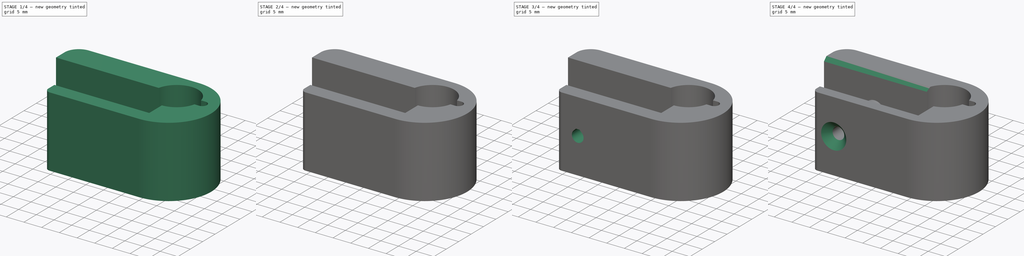
[diagram: build sequence overview — one tinted view per stage of 4, left to right]
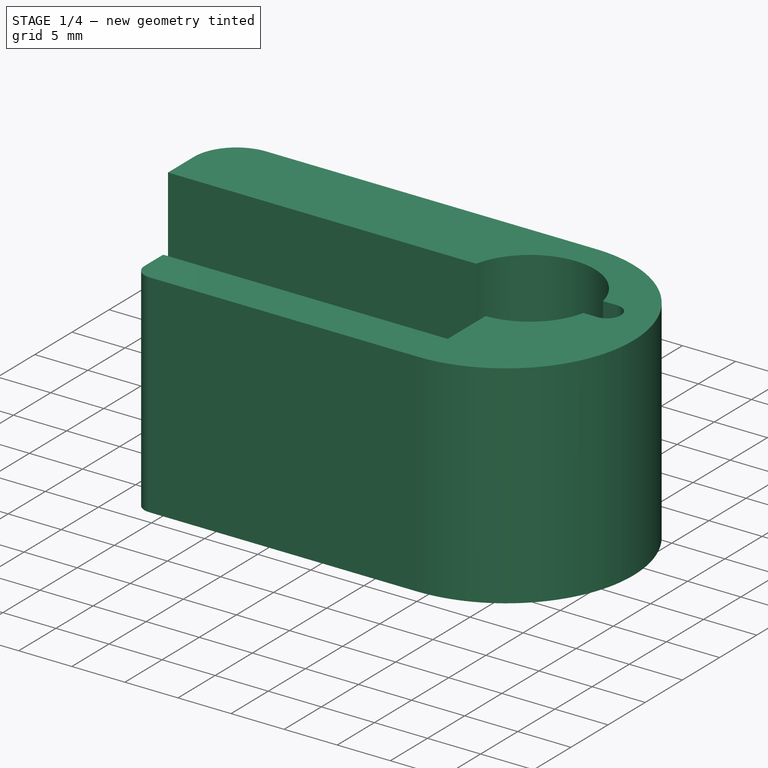
[diagram: stage 1 of 4 — iso view after this stage's code; geometry added in this stage tinted green]
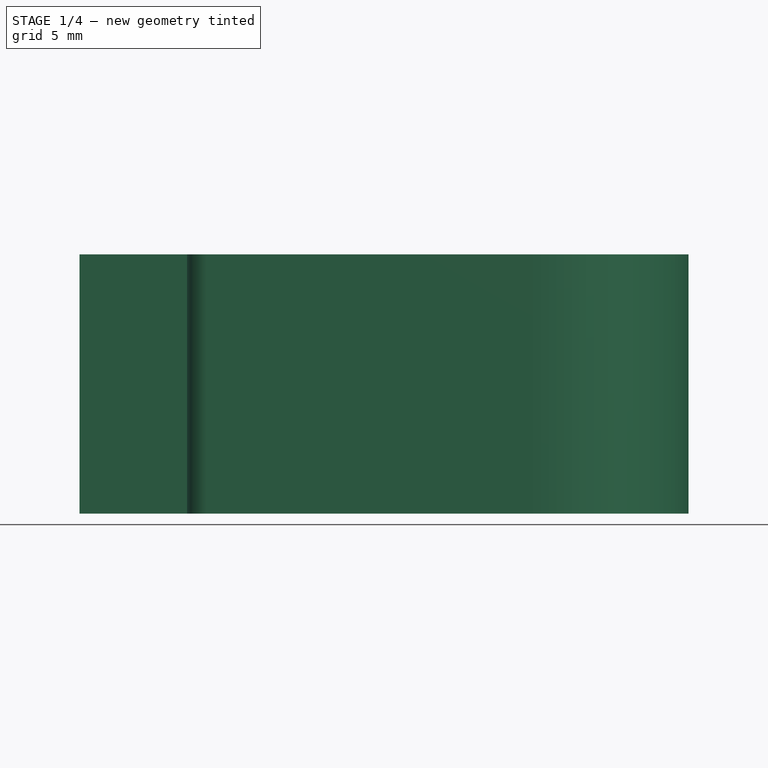
[diagram: stage 1 of 4 — front view after this stage's code; geometry added in this stage tinted green]
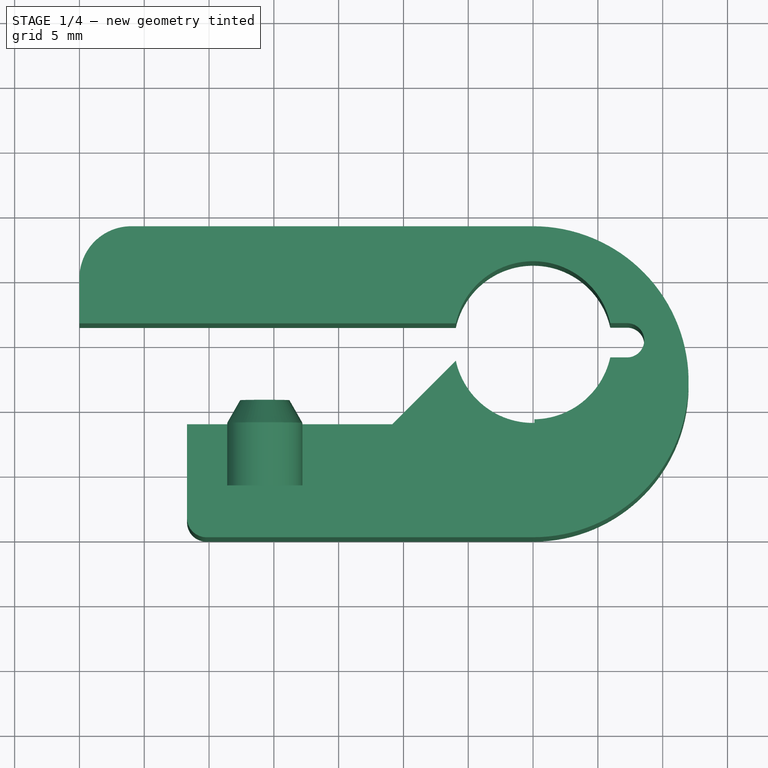
[diagram: stage 1 of 4 — top view after this stage's code; geometry added in this stage tinted green]
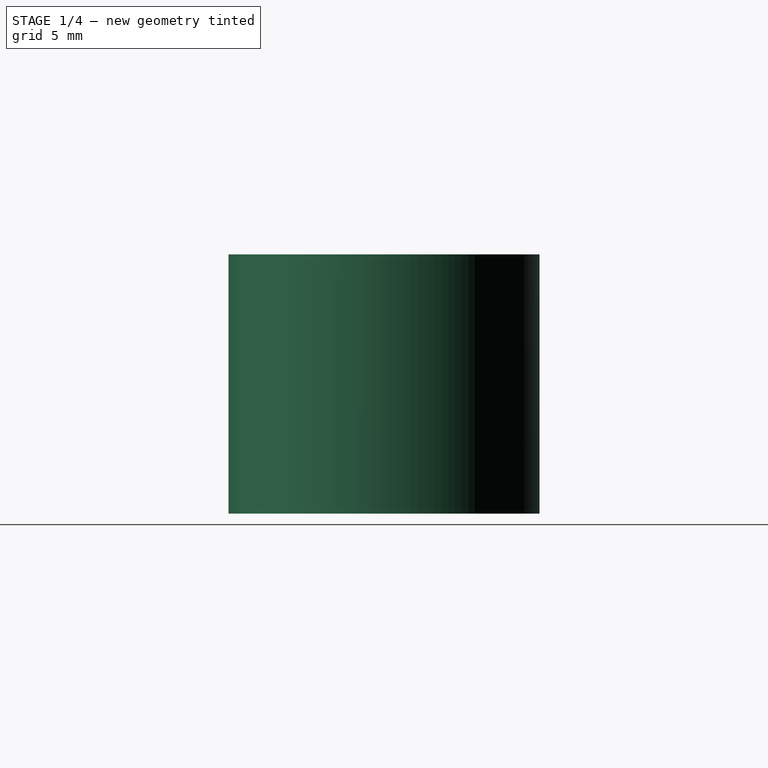
[diagram: stage 1 of 4 — right view after this stage's code; geometry added in this stage tinted green]
FCSTD DOCUMENT  (FreeCAD 0.17R13541 (Git))
Label: 10_462_x-idler-bracket
License: All rights reserved
LicenseURL: http://en.wikipedia.org/wiki/All_rights_reserved
objects: Sketcher::SketchObject×14, PartDesign::AdditiveLoft×4, PartDesign::Pocket×3, PartDesign::Chamfer×2, Spreadsheet::Sheet×1, PartDesign::Pad×1, PartDesign::SubtractiveLoft×1, PartDesign::Body×1
note: 35 computed .brp shape members not serialized (recipe doc carries the construction recipe); baked Part::Feature solids carry a one-line shape summary decoded from their .brp

FEATURE [Spreadsheet::Sheet] Spreadsheet  label="sheet1"
  cells = A1=max_x; B1(max_x)=47; A2=max_y; B2(max_y)=24; A3=max_z; B3(max_z)=20; A4=second_init_x; B4(second_init_x)=8.3000000000000007; A5=third_init_x; B5(third_init_x)=35; A6=second_init_y; B6(second_init_y)=16.5; A7=first_fini_y; B7(first_fini_y)=4; A8=first_fini_z; B8(first_fini_z)=4; A9=second_fini_y; B9(second_fini_y)=9; A10=start_x_bevel_to_rod; B10(start_x_bevel_to_rod)=24; A11=bevel_to_body_gap; B11(bevel_to_body_gap)=3; A12=stress_notch_y_gap; B12(stress_notch_y_gap)=2.6400000000000001; A13=rod_hole_x; B13(rod_hole_x)=15.199999999999999; A14=stress_notch_face_dx; B14(stress_notch_face_dx)=1.3; A15=rod_dia; B15(rod_dia)=12; A16=big_rad; B16(big_rad)=4; A17=small_rad; B17(small_rad)=1.5; A18=pinch_bolt_x; B18(pinch_bolt_x)=14.300000000000001; A19=pinch_bolt_boss_dx; B19(pinch_bolt_boss_dx)=5.7999999999999998; A20=pinch_bolt_z; B20(pinch_bolt_z)=10; A21=pinch_cone_top_dia; B21(pinch_cone_top_dia)=3.7999999999999998; A22=Pinch_cone_height; B22(Pinch_cone_height)=1.75; A23=belt_guide_base_rad1; B23(belt_guide_base_rad1)=4; A24=belt_guid_base_rad2; B24(belt_guid_base_rad2)=6.5; A25=belt_guide_base_dx; B25(belt_guide_base_dx)=6; A26=belt_guide_top_rad1; B26(belt_guide_top_rad1)=5; A27=belt_guide_top_rad2; B27(belt_guide_top_rad2)=5.5; A28=belt_guide_top_dx; B28(belt_guide_top_dx)=3.2000000000000002; A29=belt_guide_height; B29(belt_guide_height)=0.5; A30=m3_clearance; B30(m3_clearance)=3.2999999999999998; A31=m3_nut_trap; B31(m3_nut_trap)=5.5; A32=m3_nut_trap_depth; B32(m3_nut_trap_depth)=3
FEATURE [Sketcher::SketchObject] Sketch
  MapMode = 5
  Support = -> [XY_Plane]
  expr: Constraints[56] = sheet1.small_rad
  expr: Constraints[52] = sheet1.rod_dia / 2 + 0.10000000000000001
  expr: Constraints[44] = sheet1.max_y
  expr: Constraints[5] = sheet1.max_x
  expr: Constraints[57] = sheet1.second_init_y
  expr: Constraints[33] = sheet1.stress_notch_y_gap
  expr: Constraints[58] = sheet1.big_rad
  expr: Constraints[34] = sheet1.second_fini_y
  expr: Constraints[53] = sheet1.rod_hole_x
  expr: Constraints[54] = sheet1.stress_notch_face_dx
  expr: Constraints[55] = sheet1.second_init_x
  sketch-geometry (22):
    g0: LineSegment [constr] StartX=0 StartY=24 StartZ=0 EndX=47 EndY=24 EndZ=0
    g1: LineSegment [constr] StartX=47 StartY=24 StartZ=0 EndX=47 EndY=5e-12 EndZ=0
    g2: LineSegment [constr] StartX=47 StartY=5e-12 StartZ=0 EndX=0 EndY=0 EndZ=0
    g3: LineSegment [constr] StartX=0 StartY=0 StartZ=0 EndX=0 EndY=24 EndZ=0
    g4: ArcOfCircle CenterX=35 CenterY=12 CenterZ=0 NormalX=0 NormalY=0 NormalZ=1 AngleXU=0 Radius=12 StartAngle=4.71239 EndAngle=7.85398
    g5: ArcOfCircle CenterX=4 CenterY=20 CenterZ=0 NormalX=0 NormalY=0 NormalZ=1 AngleXU=0 Radius=4 StartAngle=1.5708 EndAngle=3.14159
    g6: LineSegment [constr] StartX=35 StartY=24 StartZ=0 EndX=35 EndY=4e-12 EndZ=0
    g7: LineSegment StartX=40.9555 StartY=16.52 StartZ=0 EndX=42.2555 EndY=16.52 EndZ=0
    g8: LineSegment StartX=40.9555 StartY=13.88 StartZ=0 EndX=42.2555 EndY=13.88 EndZ=0
    g9: ArcOfCircle CenterX=42.2555 CenterY=15.2 CenterZ=0 NormalX=0 NormalY=0 NormalZ=1 AngleXU=0 Radius=1.32 StartAngle=4.71239 EndAngle=7.85398
    g10: LineSegment [constr] StartX=35 StartY=15.2 StartZ=0 EndX=42.2555 EndY=15.2 EndZ=0
    g11: LineSegment [constr] StartX=29.0401 StartY=16.5 StartZ=0 EndX=29.0401 EndY=13.9 EndZ=0
    g12: LineSegment StartX=35 StartY=24 StartZ=0 EndX=4 EndY=24 EndZ=0
    g13: LineSegment StartX=0 StartY=20 StartZ=0 EndX=0 EndY=16.5 EndZ=0
    g14: LineSegment StartX=0 StartY=16.5 StartZ=0 EndX=29.0401 EndY=16.5 EndZ=0
    g15: ArcOfCircle CenterX=9.8 CenterY=1.5 CenterZ=0 NormalX=0 NormalY=0 NormalZ=1 AngleXU=0 Radius=1.5 StartAngle=3.14159 EndAngle=4.71239
    g16: LineSegment StartX=35 StartY=4e-12 StartZ=0 EndX=9.8 EndY=1e-12 EndZ=0
    g17: LineSegment StartX=8.3 StartY=1.5 StartZ=0 EndX=8.3 EndY=9 EndZ=0
    g18: LineSegment StartX=8.3 StartY=9 StartZ=0 EndX=24.1401 EndY=9 EndZ=0
    g19: LineSegment StartX=24.1401 StartY=9 StartZ=0 EndX=29.0401 EndY=13.9 EndZ=0
    g20: ArcOfCircle CenterX=35 CenterY=15.2 CenterZ=0 NormalX=0 NormalY=0 NormalZ=1 AngleXU=0 Radius=6.1 StartAngle=3.35635 EndAngle=6.06507
    g21: ArcOfCircle CenterX=35 CenterY=15.2 CenterZ=0 NormalX=0 NormalY=0 NormalZ=1 AngleXU=0 Radius=6.1 StartAngle=0.218119 EndAngle=2.92683
  constraints (59):
    c: Coincident(g0,g1)
    c: Coincident(g1,g2)
    c: Vertical(g1)
    c: Vertical(g3)
    c: Coincident(g-1,g2)
    c: Distance(g2) = 47
    c: Tangent(g4,g1)
    c: Tangent(g5,g0) = 1.5708
    c: Tangent(g5,g3) = 1.5708
    c: Coincident(g6,g4)
    c: Coincident(g6,g4)
    c: Horizontal(g8)
    c: Horizontal(g7)
    c: Tangent(g9,g7) = 1.5708
    c: Tangent(g9,g8) = -1.5708
    c: Coincident(g10,g9)
    c: Horizontal(g10)
    c: Vertical(g11)
    c: Coincident(g13,g14)
    c: Coincident(g13,g5)
    c: Coincident(g12,g5)
    c: Coincident(g12,g4)
    c: PointOnObject(g13,g3)
    c: Horizontal(g14)
    c: Tangent(g15,g2) = 1.5708
    c: Coincident(g16,g15)
    c: Coincident(g16,g4)
    c: Coincident(g17,g18)
    c: Coincident(g18,g19)
    c: Tangent(g17,g15) = 1.5708
    c: Vertical(g17)
    c: Horizontal(g18)
    c: Angle(g19,g18) = 2.35619
    c: Distance(g8,g7) = 2.64
    c: Distance(g17,g16) = 9
    c: Coincident(g20,g8)
    c: Coincident(g20,g19)
    c: Coincident(g11,g19)
    c: Coincident(g14,g11)
    c: Coincident(g20,g21)
    c: PointOnObject(g4,g6)
    c: Vertical(g6)
    c: Tangent(g4,g0) = 1.5708
    c: Tangent(g4,g2) = 1.5708
    c: Distance(g3) = 24
    c: Coincident(g0,g3)
    c: Coincident(g2,g3)
    c: Coincident(g21,g14)
    c: Coincident(g7,g21)
    c: Coincident(g20,g10)
    c: PointOnObject(g20,g6)
    c: Equal(g21,g20)
    c: Radius(g21) = 6.1
    c: Distance(g20,g2) = 15.2
    c: Distance(g7,g7) = 1.3
    c: Distance(g15,g3) = 8.3
    c: Radius(g15) = 1.5
    c: Distance(g13,g2) = 16.5
    c: Radius(g5) = 4
FEATURE [PartDesign::Pad] Pad
  Length = 20
  Length2 = 100
  Profile = -> Sketch
  Type = 0
  expr: Length = sheet1.max_z
FEATURE [Sketcher::SketchObject] Sketch001
  AttachmentOffset = pos=(0,0,-4) rot=(0,0,1;0rad)
  MapMode = 5
  Placement = pos=(0,4,0) rot=(1,0,0;1.5708rad)
  Support = -> [XZ_Plane]
  expr: Constraints[22] = sheet1.pinch_bolt_z
  expr: Constraints[17] = sheet1.first_fini_z
  expr: Constraints[20] = sheet1.pinch_bolt_boss_dx
  expr: Constraints[21] = sheet1.pinch_bolt_x
  expr: Constraints[18] = sheet1.max_z
  expr: AttachmentOffset.Base.z = -sheet1.first_fini_y
  sketch-geometry (8):
    g0: LineSegment StartX=17.2 StartY=10 StartZ=0 EndX=17.2 EndY=4 EndZ=0
    g1: LineSegment StartX=17.2 StartY=4 StartZ=0 EndX=35.1 EndY=4 EndZ=0
    g2: LineSegment StartX=35.1 StartY=4 StartZ=0 EndX=35.1 EndY=20 EndZ=0
    g3: LineSegment StartX=35.1 StartY=20 StartZ=0 EndX=0 EndY=20 EndZ=0
    g4: LineSegment StartX=0 StartY=20 StartZ=0 EndX=0 EndY=4 EndZ=0
    g5: LineSegment StartX=0 StartY=4 StartZ=0 EndX=11.4 EndY=4 EndZ=0
    g6: LineSegment StartX=11.4 StartY=4 StartZ=0 EndX=11.4 EndY=10 EndZ=0
    g7: ArcOfCircle CenterX=14.3 CenterY=10 CenterZ=0 NormalX=0 NormalY=0 NormalZ=1 AngleXU=0 Radius=2.9 StartAngle=0 EndAngle=3.14159
  constraints (23):
    c: Coincident(g0,g1)
    c: Coincident(g1,g2)
    c: Coincident(g2,g3)
    c: Coincident(g3,g4)
    c: Coincident(g4,g5)
    c: Coincident(g5,g6)
    c: Vertical(g4)
    c: Vertical(g6)
    c: Vertical(g0)
    c: Vertical(g2)
    c: Horizontal(g5)
    c: Horizontal(g1)
    c: Horizontal(g3)
    c: PointOnObject(g4,g-2)
    c: PointOnObject(g0,g5)
    c: Tangent(g6,g7) = 1.5708
    c: Tangent(g0,g7) = 1.5708
    c: DistanceY(g-1,g4) = 4
    c: DistanceY(g-1,g3) = 20
    c: DistanceX(g-2,g1) = 35.1
    c: Distance(g5,g0) = 5.8
    c: DistanceX(g-2,g7) = 14.3
    c: DistanceY(g-1,g7) = 10
FEATURE [PartDesign::Pocket] Pocket
  BaseFeature = -> Pad
  Length = 12
  Length2 = 100
  Profile = -> Sketch001
  Type = 0
  expr: Length = sheet1.second_init_y - sheet1.first_fini_y - 0.5
FEATURE [Sketcher::SketchObject] Sketch002
  AttachmentOffset = pos=(0,0,-9) rot=(0,0,1;0rad)
  MapMode = 5
  Placement = pos=(0,9,1e-12) rot=(1,0,0;1.5708rad)
  Support = -> [XZ_Plane]
  expr: AttachmentOffset.Base.z = -sheet1.second_fini_y
  expr: Constraints[1] = sheet1.pinch_bolt_x
  expr: Constraints[2] = sheet1.pinch_bolt_z
  expr: Constraints[0] = sheet1.pinch_bolt_boss_dx / 2
  sketch-geometry (1):
    g0: Circle CenterX=14.3 CenterY=10 CenterZ=0 NormalX=0 NormalY=0 NormalZ=1 AngleXU=0 Radius=2.9
  constraints (3):
    c: Radius(g0) = 2.9
    c: DistanceX(g-2,g0) = 14.3
    c: DistanceY(g-1,g0) = 10
FEATURE [Sketcher::SketchObject] Sketch003
  AttachmentOffset = pos=(0,0,-10.75) rot=(0,0,1;0rad)
  MapMode = 5
  Placement = pos=(0,10.75,1e-12) rot=(1,0,0;1.5708rad)
  Support = -> [XZ_Plane]
  expr: AttachmentOffset.Base.z = -sheet1.second_fini_y - sheet1.Pinch_cone_height
  expr: Constraints[1] = sheet1.pinch_bolt_x
  expr: Constraints[2] = sheet1.pinch_bolt_z
  expr: Constraints[0] = sheet1.pinch_cone_top_dia / 2
  sketch-geometry (1):
    g0: Circle CenterX=14.3 CenterY=10 CenterZ=0 NormalX=0 NormalY=0 NormalZ=1 AngleXU=0 Radius=1.9
  constraints (3):
    c: Radius(g0) = 1.9
    c: DistanceX(g-2,g0) = 14.3
    c: DistanceY(g-1,g0) = 10
FEATURE [PartDesign::AdditiveLoft] AdditiveLoft
  BaseFeature = -> Pocket
  Closed = false
  Profile = -> Sketch002
  Ruled = false
  Sections = -> [Sketch003]
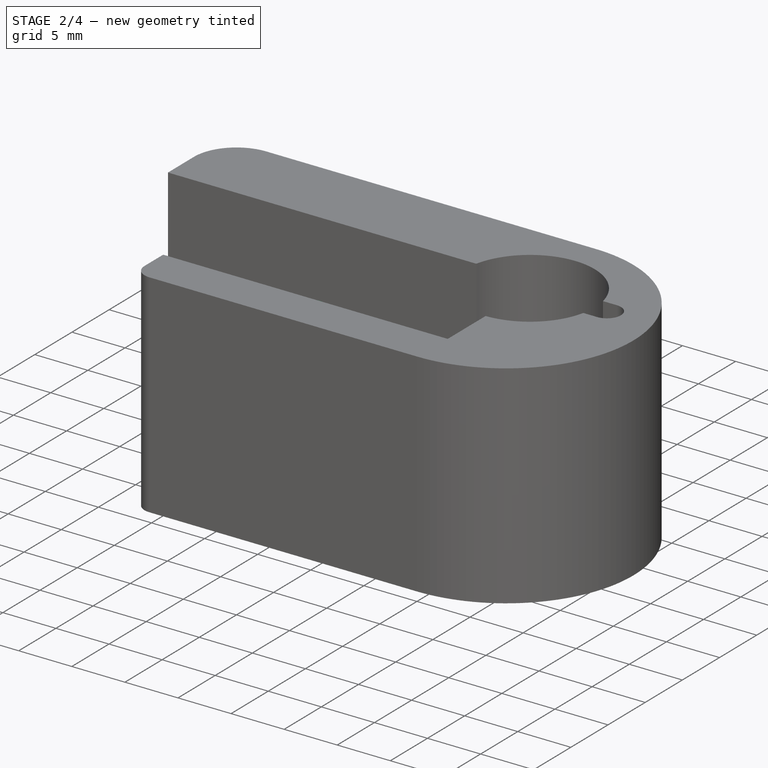
[diagram: stage 2 of 4 — iso view after this stage's code; geometry added in this stage tinted green]
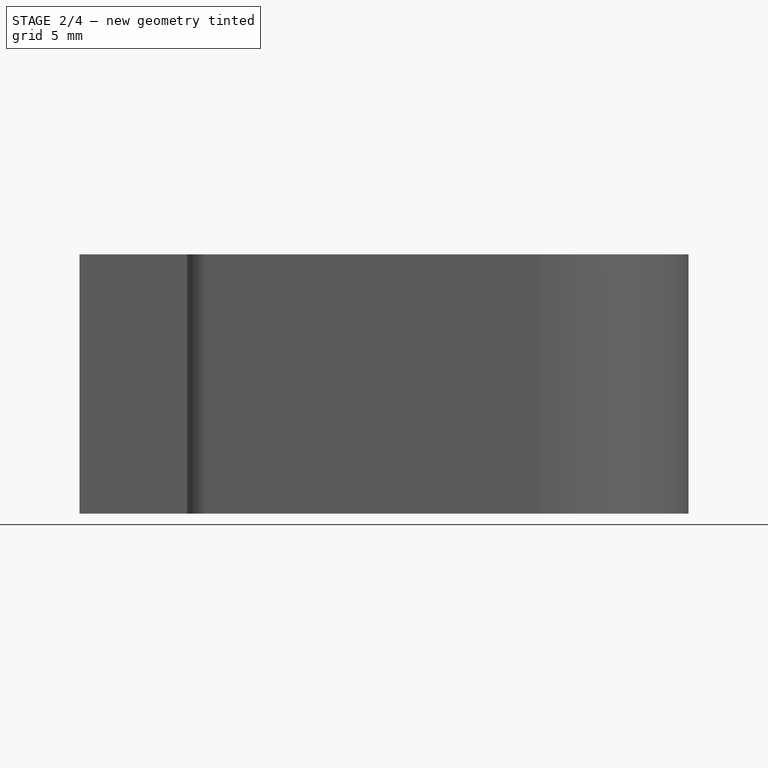
[diagram: stage 2 of 4 — front view after this stage's code; geometry added in this stage tinted green]
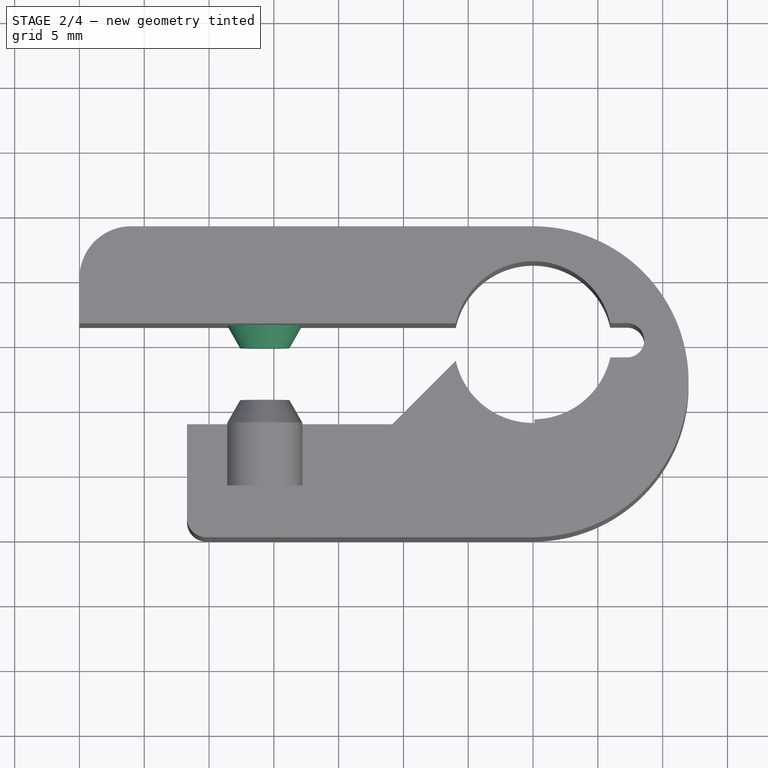
[diagram: stage 2 of 4 — top view after this stage's code; geometry added in this stage tinted green]
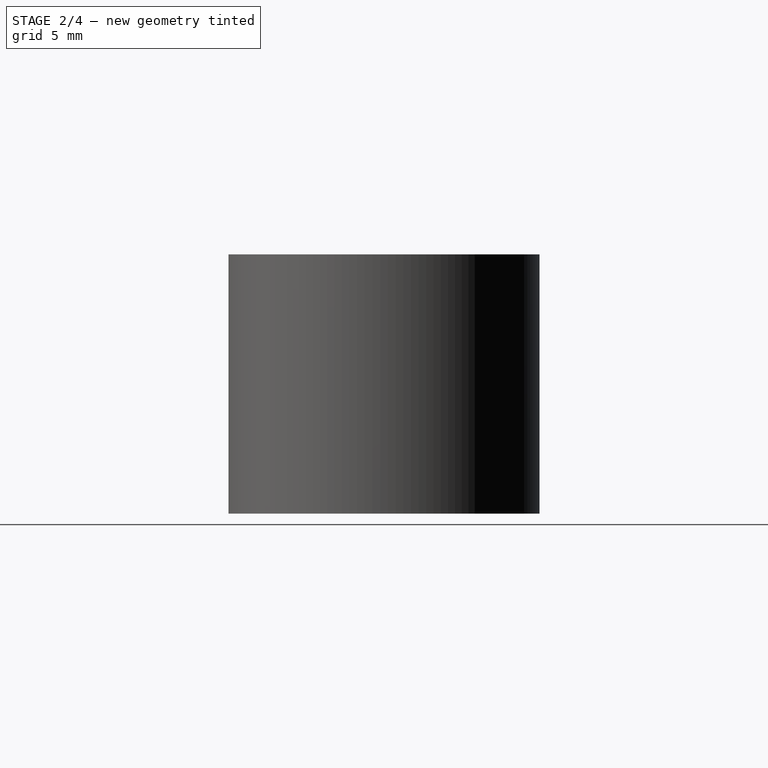
[diagram: stage 2 of 4 — right view after this stage's code; geometry added in this stage tinted green]
FEATURE [Sketcher::SketchObject] Sketch004
  AttachmentOffset = pos=(0,0,-16.5) rot=(0,0,1;0rad)
  MapMode = 5
  Placement = pos=(0,16.5,2e-12) rot=(1,0,0;1.5708rad)
  Support = -> [XZ_Plane]
  expr: AttachmentOffset.Base.z = -sheet1.second_init_y
  expr: Constraints[1] = sheet1.pinch_bolt_x
  expr: Constraints[2] = sheet1.pinch_bolt_z
  expr: Constraints[0] = sheet1.pinch_bolt_boss_dx / 2
  sketch-geometry (1):
    g0: Circle CenterX=14.3 CenterY=10 CenterZ=0 NormalX=0 NormalY=0 NormalZ=1 AngleXU=0 Radius=2.9
  constraints (3):
    c: Radius(g0) = 2.9
    c: DistanceX(g-2,g0) = 14.3
    c: DistanceY(g-1,g0) = 10
FEATURE [Sketcher::SketchObject] Sketch005
  AttachmentOffset = pos=(0,0,-14.75) rot=(0,0,1;0rad)
  MapMode = 5
  Placement = pos=(0,14.75,2e-12) rot=(1,0,0;1.5708rad)
  Support = -> [XZ_Plane]
  expr: AttachmentOffset.Base.z = -sheet1.second_init_y + sheet1.Pinch_cone_height
  expr: Constraints[1] = sheet1.pinch_bolt_x
  expr: Constraints[2] = sheet1.pinch_bolt_z
  expr: Constraints[0] = sheet1.pinch_cone_top_dia / 2
  sketch-geometry (1):
    g0: Circle CenterX=14.3 CenterY=10 CenterZ=0 NormalX=0 NormalY=0 NormalZ=1 AngleXU=0 Radius=1.9
  constraints (3):
    c: Radius(g0) = 1.9
    c: DistanceX(g-2,g0) = 14.3
    c: DistanceY(g-1,g0) = 10
FEATURE [PartDesign::AdditiveLoft] AdditiveLoft001
  BaseFeature = -> AdditiveLoft
  Closed = false
  Profile = -> Sketch004
  Ruled = false
  Sections = -> [Sketch005]
FEATURE [Sketcher::SketchObject] Sketch006
  AttachmentOffset = pos=(0,0,-9) rot=(0,0,1;0rad)
  MapMode = 5
  Placement = pos=(0,9,1e-12) rot=(1,0,0;1.5708rad)
  Support = -> [XZ_Plane]
  expr: AttachmentOffset.Base.z = -sheet1.second_fini_y
  expr: Constraints[6] = sheet1.belt_guide_base_rad1
  expr: Constraints[2] = sheet1.pinch_bolt_x
  expr: Constraints[5] = sheet1.pinch_bolt_boss_dx
  expr: Constraints[3] = sheet1.pinch_bolt_z
  expr: Constraints[1] = sheet1.max_z
  expr: Constraints[7] = sheet1.belt_guid_base_rad2
  sketch-geometry (7):
    g0: LineSegment [constr] StartX=14.3 StartY=0 StartZ=0 EndX=14.3 EndY=20 EndZ=0
    g1: LineSegment [constr] StartX=11.4 StartY=6 StartZ=0 EndX=17.2 EndY=6 EndZ=0
    g2: LineSegment [constr] StartX=11.4 StartY=3.5 StartZ=0 EndX=17.2 EndY=3.5 EndZ=0
    g3: ArcOfCircle CenterX=14.3 CenterY=10 CenterZ=0 NormalX=0 NormalY=0 NormalZ=1 AngleXU=0 Radius=4.94065 StartAngle=4.08508 EndAngle=5.3397
    g4: ArcOfCircle CenterX=14.3 CenterY=10 CenterZ=0 NormalX=0 NormalY=0 NormalZ=1 AngleXU=0 Radius=7.11758 StartAngle=4.29274 EndAngle=5.13204
    g5: LineSegment StartX=11.4 StartY=6 StartZ=0 EndX=11.4 EndY=3.5 EndZ=0
    g6: LineSegment StartX=17.2 StartY=6 StartZ=0 EndX=17.2 EndY=3.5 EndZ=0
  constraints (20):
    c: PointOnObject(g0,g-1)
    c: Distance(g0) = 20
    c: DistanceX(g-2,g0) = 14.3
    c: DistanceY(g-1,g3) = 10
    c: Equal(g1,g2)
    c: Distance(g1) = 5.8
    c: Distance(g3,g1) = 4
    c: Distance(g3,g2) = 6.5
    c: Coincident(g5,g3)
    c: Coincident(g3,g1)
    c: Symmetric(g3,g6,g0)
    c: Coincident(g6,g1)
    c: Coincident(g4,g5)
    c: Symmetric(g2,g2,g0)
    c: Coincident(g6,g4)
    c: Coincident(g4,g2)
    c: Coincident(g4,g2)
    c: Coincident(g3,g6)
    c: Coincident(g4,g3)
    c: Horizontal(g1)
FEATURE [Sketcher::SketchObject] Sketch007
  AttachmentOffset = pos=(0,0,-9.5) rot=(0,0,1;0rad)
  MapMode = 5
  Placement = pos=(0,9.5,1e-12) rot=(1,0,0;1.5708rad)
  Support = -> [XZ_Plane]
  expr: AttachmentOffset.Base.z = -sheet1.second_fini_y - sheet1.belt_guide_height
  expr: Constraints[6] = sheet1.belt_guide_top_rad1
  expr: Constraints[2] = sheet1.pinch_bolt_x
  expr: Constraints[5] = sheet1.belt_guide_top_dx
  expr: Constraints[3] = sheet1.pinch_bolt_z
  expr: Constraints[1] = sheet1.max_z
  expr: Constraints[7] = sheet1.belt_guide_top_rad2
  sketch-geometry (7):
    g0: LineSegment [constr] StartX=14.3 StartY=0 StartZ=0 EndX=14.3 EndY=20 EndZ=0
    g1: LineSegment [constr] StartX=12.7 StartY=5 StartZ=0 EndX=15.9 EndY=5 EndZ=0
    g2: LineSegment [constr] StartX=12.7 StartY=4.5 StartZ=0 EndX=15.9 EndY=4.5 EndZ=0
    g3: ArcOfCircle CenterX=14.3 CenterY=10 CenterZ=0 NormalX=0 NormalY=0 NormalZ=1 AngleXU=0 Radius=5.24976 StartAngle=4.40269 EndAngle=5.02209
    g4: ArcOfCircle CenterX=14.3 CenterY=10 CenterZ=0 NormalX=0 NormalY=0 NormalZ=1 AngleXU=0 Radius=5.728 StartAngle=4.42929 EndAngle=4.99548
    g5: LineSegment StartX=12.7 StartY=5 StartZ=0 EndX=12.7 EndY=4.5 EndZ=0
    g6: LineSegment StartX=15.9 StartY=5 StartZ=0 EndX=15.9 EndY=4.5 EndZ=0
  constraints (20):
    c: PointOnObject(g0,g-1)
    c: Distance(g0) = 20
    c: DistanceX(g-2,g0) = 14.3
    c: DistanceY(g-1,g3) = 10
    c: Equal(g1,g2)
    c: Distance(g1) = 3.2
    c: Distance(g3,g1) = 5
    c: Distance(g3,g2) = 5.5
    c: Coincident(g5,g3)
    c: Coincident(g3,g1)
    c: Symmetric(g3,g6,g0)
    c: Coincident(g6,g1)
    c: Coincident(g4,g5)
    c: Symmetric(g2,g2,g0)
    c: Coincident(g6,g4)
    c: Coincident(g4,g2)
    c: Coincident(g4,g2)
    c: Coincident(g3,g6)
    c: Coincident(g4,g3)
    c: Horizontal(g1)
FEATURE [PartDesign::AdditiveLoft] AdditiveLoft002
  BaseFeature = -> AdditiveLoft001
  Closed = false
  Profile = -> Sketch006
  Ruled = false
  Sections = -> [Sketch007]
FEATURE [Sketcher::SketchObject] Sketch008
  AttachmentOffset = pos=(0,0,-16.5) rot=(0,0,1;0rad)
  MapMode = 5
  Placement = pos=(0,16.5,2e-12) rot=(1,0,0;1.5708rad)
  Support = -> [XZ_Plane]
  expr: AttachmentOffset.Base.z = -sheet1.second_init_y
  expr: Constraints[6] = sheet1.belt_guide_base_rad1
  expr: Constraints[2] = sheet1.pinch_bolt_x
  expr: Constraints[5] = sheet1.pinch_bolt_boss_dx
  expr: Constraints[3] = sheet1.pinch_bolt_z
  expr: Constraints[1] = sheet1.max_z
  expr: Constraints[7] = sheet1.belt_guid_base_rad2
  sketch-geometry (7):
    g0: LineSegment [constr] StartX=14.3 StartY=0 StartZ=0 EndX=14.3 EndY=20 EndZ=0
    g1: LineSegment [constr] StartX=11.4 StartY=6 StartZ=0 EndX=17.2 EndY=6 EndZ=0
    g2: LineSegment [constr] StartX=11.4 StartY=3.5 StartZ=0 EndX=17.2 EndY=3.5 EndZ=0
    g3: ArcOfCircle CenterX=14.3 CenterY=10 CenterZ=0 NormalX=0 NormalY=0 NormalZ=1 AngleXU=0 Radius=4.94065 StartAngle=4.08508 EndAngle=5.3397
    g4: ArcOfCircle CenterX=14.3 CenterY=10 CenterZ=0 NormalX=0 NormalY=0 NormalZ=1 AngleXU=0 Radius=7.11758 StartAngle=4.29274 EndAngle=5.13204
    g5: LineSegment StartX=11.4 StartY=6 StartZ=0 EndX=11.4 EndY=3.5 EndZ=0
    g6: LineSegment StartX=17.2 StartY=6 StartZ=0 EndX=17.2 EndY=3.5 EndZ=0
  constraints (20):
    c: PointOnObject(g0,g-1)
    c: Distance(g0) = 20
    c: DistanceX(g-2,g0) = 14.3
    c: DistanceY(g-1,g3) = 10
    c: Equal(g1,g2)
    c: Distance(g1) = 5.8
    c: Distance(g3,g1) = 4
    c: Distance(g3,g2) = 6.5
    c: Coincident(g5,g3)
    c: Coincident(g3,g1)
    c: Symmetric(g3,g6,g0)
    c: Coincident(g6,g1)
    c: Coincident(g4,g5)
    c: Symmetric(g2,g2,g0)
    c: Coincident(g6,g4)
    c: Coincident(g4,g2)
    c: Coincident(g4,g2)
    c: Coincident(g3,g6)
    c: Coincident(g4,g3)
    c: Horizontal(g1)
FEATURE [Sketcher::SketchObject] Sketch009
  AttachmentOffset = pos=(0,0,-16) rot=(0,0,1;0rad)
  MapMode = 5
  Placement = pos=(0,16,2e-12) rot=(1,0,0;1.5708rad)
  Support = -> [XZ_Plane]
  expr: AttachmentOffset.Base.z = -sheet1.second_init_y + sheet1.belt_guide_height
  expr: Constraints[6] = sheet1.belt_guide_top_rad1
  expr: Constraints[2] = sheet1.pinch_bolt_x
  expr: Constraints[5] = sheet1.belt_guide_top_dx
  expr: Constraints[3] = sheet1.pinch_bolt_z
  expr: Constraints[1] = sheet1.max_z
  expr: Constraints[7] = sheet1.belt_guide_top_rad2
  sketch-geometry (7):
    g0: LineSegment [constr] StartX=14.3 StartY=0 StartZ=0 EndX=14.3 EndY=20 EndZ=0
    g1: LineSegment [constr] StartX=12.7 StartY=5 StartZ=0 EndX=15.9 EndY=5 EndZ=0
    g2: LineSegment [constr] StartX=12.7 StartY=4.5 StartZ=0 EndX=15.9 EndY=4.5 EndZ=0
    g3: ArcOfCircle CenterX=14.3 CenterY=10 CenterZ=0 NormalX=0 NormalY=0 NormalZ=1 AngleXU=0 Radius=5.24976 StartAngle=4.40269 EndAngle=5.02209
    g4: ArcOfCircle CenterX=14.3 CenterY=10 CenterZ=0 NormalX=0 NormalY=0 NormalZ=1 AngleXU=0 Radius=5.728 StartAngle=4.42929 EndAngle=4.99548
    g5: LineSegment StartX=12.7 StartY=5 StartZ=0 EndX=12.7 EndY=4.5 EndZ=0
    g6: LineSegment StartX=15.9 StartY=5 StartZ=0 EndX=15.9 EndY=4.5 EndZ=0
  constraints (20):
    c: PointOnObject(g0,g-1)
    c: Distance(g0) = 20
    c: DistanceX(g-2,g0) = 14.3
    c: DistanceY(g-1,g3) = 10
    c: Equal(g1,g2)
    c: Distance(g1) = 3.2
    c: Distance(g3,g1) = 5
    c: Distance(g3,g2) = 5.5
    c: Coincident(g5,g3)
    c: Coincident(g3,g1)
    c: Symmetric(g3,g6,g0)
    c: Coincident(g6,g1)
    c: Coincident(g4,g5)
    c: Symmetric(g2,g2,g0)
    c: Coincident(g6,g4)
    c: Coincident(g4,g2)
    c: Coincident(g4,g2)
    c: Coincident(g3,g6)
    c: Coincident(g4,g3)
    c: Horizontal(g1)
FEATURE [PartDesign::AdditiveLoft] AdditiveLoft003
  BaseFeature = -> AdditiveLoft002
  Closed = false
  Profile = -> Sketch008
  Ruled = false
  Sections = -> [Sketch009]
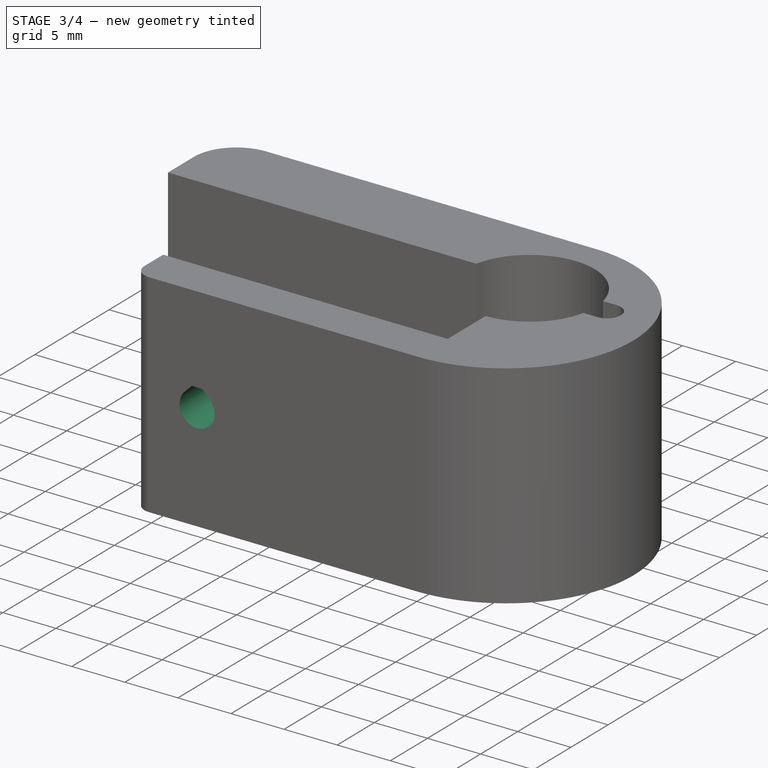
[diagram: stage 3 of 4 — iso view after this stage's code; geometry added in this stage tinted green]
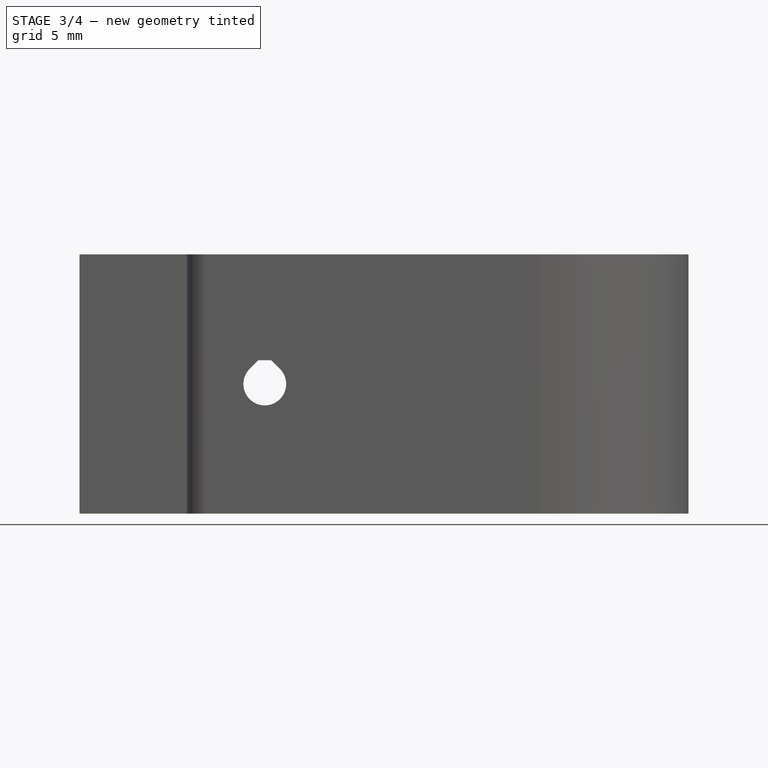
[diagram: stage 3 of 4 — front view after this stage's code; geometry added in this stage tinted green]
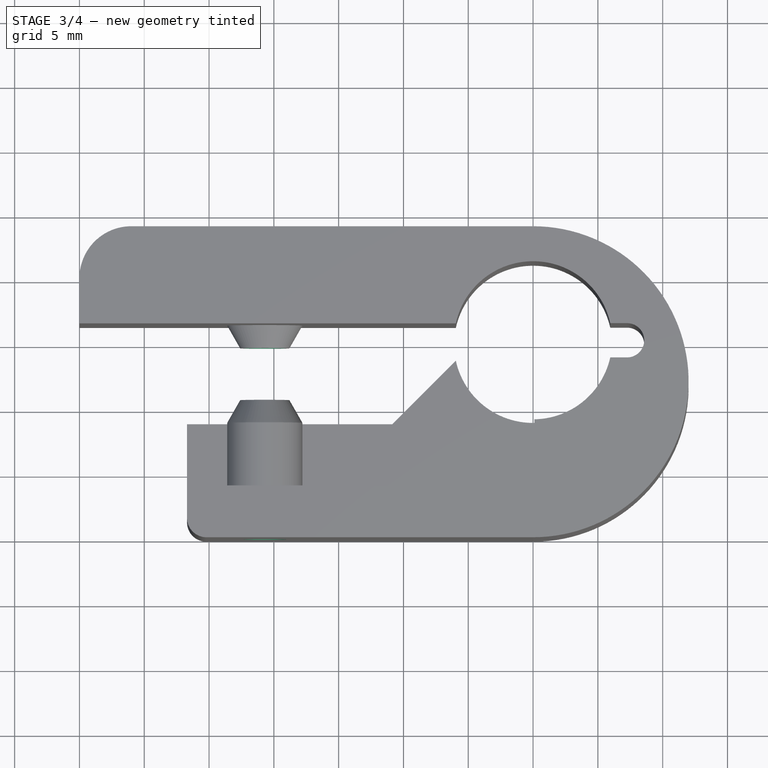
[diagram: stage 3 of 4 — top view after this stage's code; geometry added in this stage tinted green]
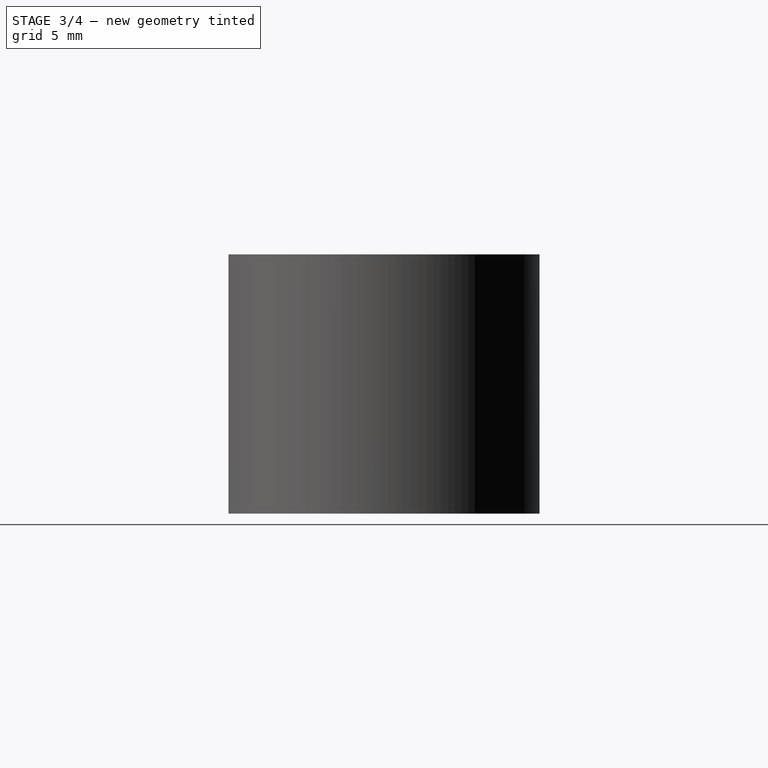
[diagram: stage 3 of 4 — right view after this stage's code; geometry added in this stage tinted green]
FEATURE [Sketcher::SketchObject] Sketch010
  MapMode = 5
  Placement = pos=(0,0,0) rot=(1,0,0;1.5708rad)
  Support = -> [XZ_Plane]
  expr: Constraints[9] = sheet1.pinch_bolt_x
  expr: Constraints[8] = sheet1.pinch_bolt_z
  expr: Constraints[6] = sheet1.m3_clearance / 2
  sketch-geometry (4):
    g0: ArcOfCircle CenterX=14.3 CenterY=10 CenterZ=0 NormalX=0 NormalY=0 NormalZ=1 AngleXU=0 Radius=1.65 StartAngle=2.35619 EndAngle=7.06858
    g1: LineSegment StartX=13.8 StartY=11.8335 StartZ=0 EndX=14.8 EndY=11.8335 EndZ=0
    g2: LineSegment StartX=13.1333 StartY=11.1667 StartZ=0 EndX=13.8 EndY=11.8335 EndZ=0
    g3: LineSegment StartX=15.4667 StartY=11.1667 StartZ=0 EndX=14.8 EndY=11.8335 EndZ=0
  constraints (11):
    c: Horizontal(g1)
    c: Tangent(g0,g2) = 1.5708
    c: Tangent(g0,g3) = -1.5708
    c: Coincident(g2,g1)
    c: Coincident(g3,g1)
    c: Equal(g2,g3)
    c: Radius(g0) = 1.65
    c: Distance(g1) = 1
    c: DistanceY(g-1,g0) = 10
    c: DistanceX(g-2,g0) = 14.3
    c: Angle(g2,g1) = 2.35619
FEATURE [PartDesign::Pocket] Pocket001
  BaseFeature = -> AdditiveLoft003
  Length = 5
  Length2 = 100
  Profile = -> Sketch010
  Type = 1
FEATURE [Sketcher::SketchObject] Sketch011
  AttachmentOffset = pos=(0,0,-24) rot=(0,0,1;0rad)
  MapMode = 5
  Placement = pos=(0,24,2e-12) rot=(1,0,0;1.5708rad)
  Support = -> [XZ_Plane]
  expr: Constraints[20] = sheet1.m3_nut_trap
  expr: Constraints[18] = sheet1.pinch_bolt_x
  expr: Constraints[19] = sheet1.pinch_bolt_z
  expr: AttachmentOffset.Base.z = -sheet1.max_y
  sketch-geometry (7):
    g0: LineSegment StartX=11.55 StartY=11.5877 StartZ=0 EndX=11.55 EndY=8.41229 EndZ=0
    g1: LineSegment StartX=11.55 StartY=8.41229 StartZ=0 EndX=14.3 EndY=6.82457 EndZ=0
    g2: LineSegment StartX=14.3 StartY=6.82457 StartZ=0 EndX=17.05 EndY=8.41229 EndZ=0
    g3: LineSegment StartX=17.05 StartY=8.41229 StartZ=0 EndX=17.05 EndY=11.5877 EndZ=0
    g4: LineSegment StartX=17.05 StartY=11.5877 StartZ=0 EndX=14.3 EndY=13.1754 EndZ=0
    g5: LineSegment StartX=14.3 StartY=13.1754 StartZ=0 EndX=11.55 EndY=11.5877 EndZ=0
    g6: Circle [constr] CenterX=14.3 CenterY=10 CenterZ=0 NormalX=0 NormalY=0 NormalZ=1 AngleXU=0 Radius=3.17543
  constraints (17):
    c: Coincident(g0,g1)
    c: Coincident(g1,g2)
    c: Coincident(g2,g3)
    c: Coincident(g3,g4)
    c: Coincident(g4,g5)
    c: Coincident(g5,g0)
    c: Equal(g0, g1-g5) x5
    c: PointOnObject(g0,g6)
    c: PointOnObject(g1,g6)
    c: PointOnObject(g2,g6)
    c: PointOnObject(g3,g6)
    c: PointOnObject(g4,g6)
    c: PointOnObject(g5,g6)
    c: Vertical(g0)
    c: DistanceX(g-2,g6) = 14.3
    c: DistanceY(g-1,g6) = 10
    c: Distance(g2,g0) = 5.5
FEATURE [PartDesign::Pocket] Pocket002
  BaseFeature = -> Pocket001
  Length = 3
  Length2 = 100
  Profile = -> Sketch011
  Reversed = true
  Type = 0
  expr: Length = sheet1.m3_nut_trap_depth
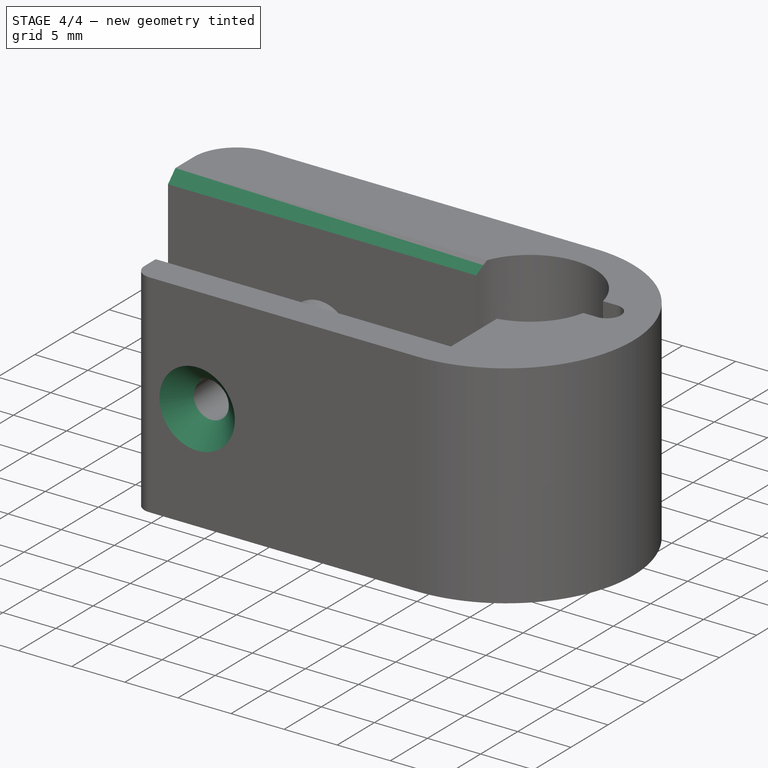
[diagram: stage 4 of 4 — iso view after this stage's code; geometry added in this stage tinted green]
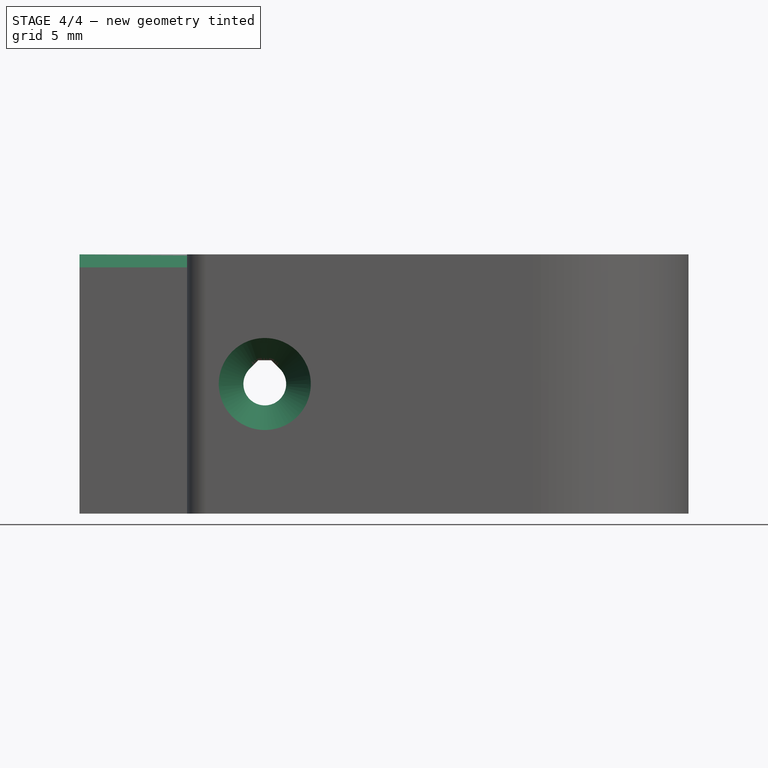
[diagram: stage 4 of 4 — front view after this stage's code; geometry added in this stage tinted green]
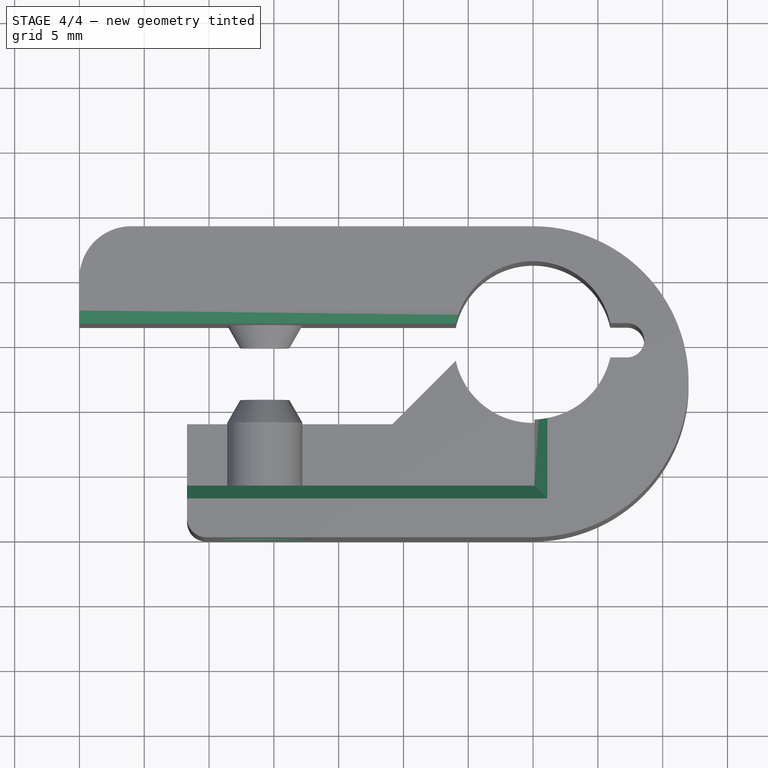
[diagram: stage 4 of 4 — top view after this stage's code; geometry added in this stage tinted green]
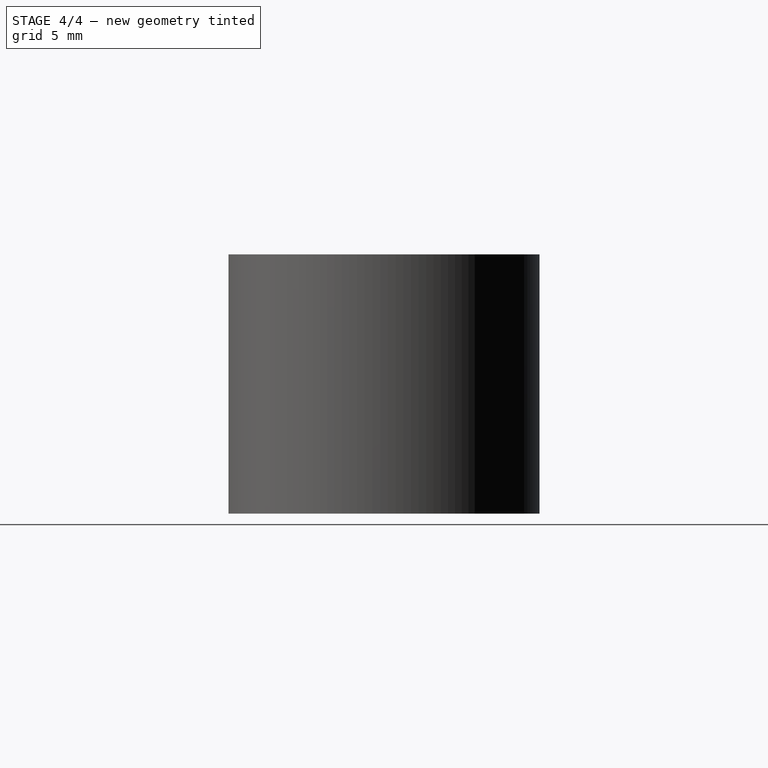
[diagram: stage 4 of 4 — right view after this stage's code; geometry added in this stage tinted green]
FEATURE [Sketcher::SketchObject] Sketch012
  MapMode = 5
  Placement = pos=(0,0,0) rot=(1,0,0;1.5708rad)
  Support = -> [XZ_Plane]
  expr: Constraints[2] = sheet1.pinch_bolt_x
  expr: Constraints[1] = sheet1.pinch_bolt_z
  expr: Constraints[0] = 7.0999999999999996 / 2
  sketch-geometry (1):
    g0: Circle CenterX=14.3 CenterY=10 CenterZ=0 NormalX=0 NormalY=0 NormalZ=1 AngleXU=0 Radius=3.55
  constraints (3):
    c: Radius(g0) = 3.55
    c: DistanceY(g-1,g0) = 10
    c: DistanceX(g-2,g0) = 14.3
FEATURE [Sketcher::SketchObject] Sketch013
  AttachmentOffset = pos=(0,0,-2.05) rot=(0,0,1;0rad)
  MapMode = 5
  Placement = pos=(0,2.05,0) rot=(1,0,0;1.5708rad)
  Support = -> [XZ_Plane]
  expr: AttachmentOffset.Base.z = -2.0499999999999998
  expr: Constraints[2] = 3 / 2
  expr: Constraints[0] = sheet1.pinch_bolt_z
  expr: Constraints[1] = sheet1.pinch_bolt_x
  sketch-geometry (1):
    g0: Circle CenterX=14.3 CenterY=10 CenterZ=0 NormalX=0 NormalY=0 NormalZ=1 AngleXU=0 Radius=1.5
  constraints (3):
    c: DistanceY(g-1,g0) = 10
    c: DistanceX(g-2,g0) = 14.3
    c: Radius(g0) = 1.5
FEATURE [PartDesign::SubtractiveLoft] SubtractiveLoft
  BaseFeature = -> Pocket002
  Closed = false
  Profile = -> Sketch012
  Ruled = false
  Sections = -> [Sketch013]
FEATURE [PartDesign::Chamfer] Chamfer
  Base = -> SubtractiveLoft [Edge14,Edge15,Edge16,Edge17,Edge12,Edge13]
  BaseFeature = -> SubtractiveLoft
  Size = 0.5
FEATURE [PartDesign::Chamfer] Chamfer001
  Base = -> Chamfer [Edge42,Edge43,Edge49]
  BaseFeature = -> Chamfer
  Size = 1
FEATURE [PartDesign::Body] Body
  Group = -> [Sketch,Pad,Sketch001,Pocket,Sketch002,Sketch003,AdditiveLoft,Sketch004,Sketch005,AdditiveLoft001,Sketch006,Sketch007,AdditiveLoft002,Sketch008,Sketch009,AdditiveLoft003,Sketch010,Pocket001,Sketch011,Pocket002,Sketch012,Sketch013,SubtractiveLoft,Chamfer,Chamfer001]
  Origin = -> Origin
  Tip = -> Chamfer001
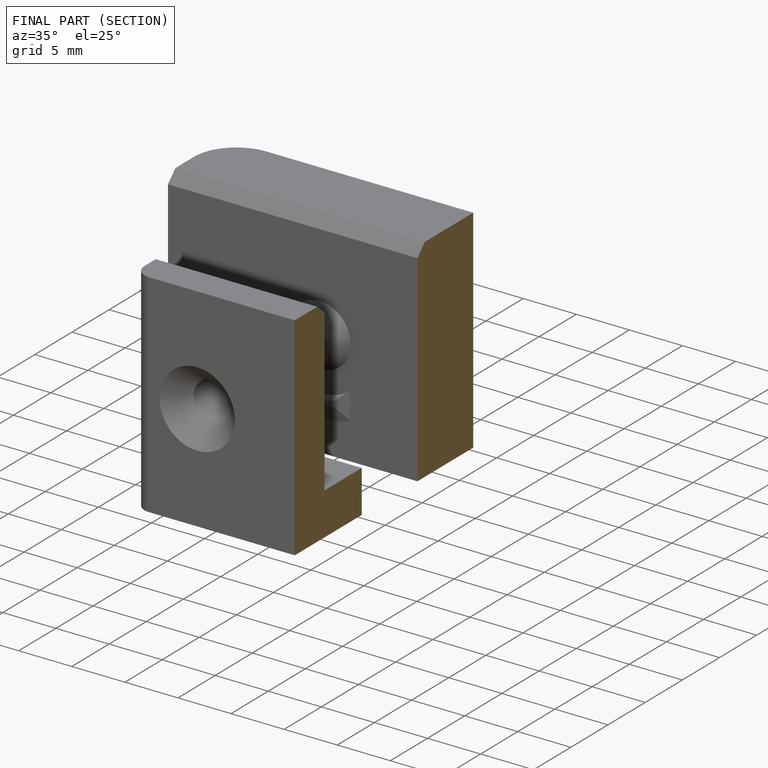
[diagram: finished part — half-section view (interior)]
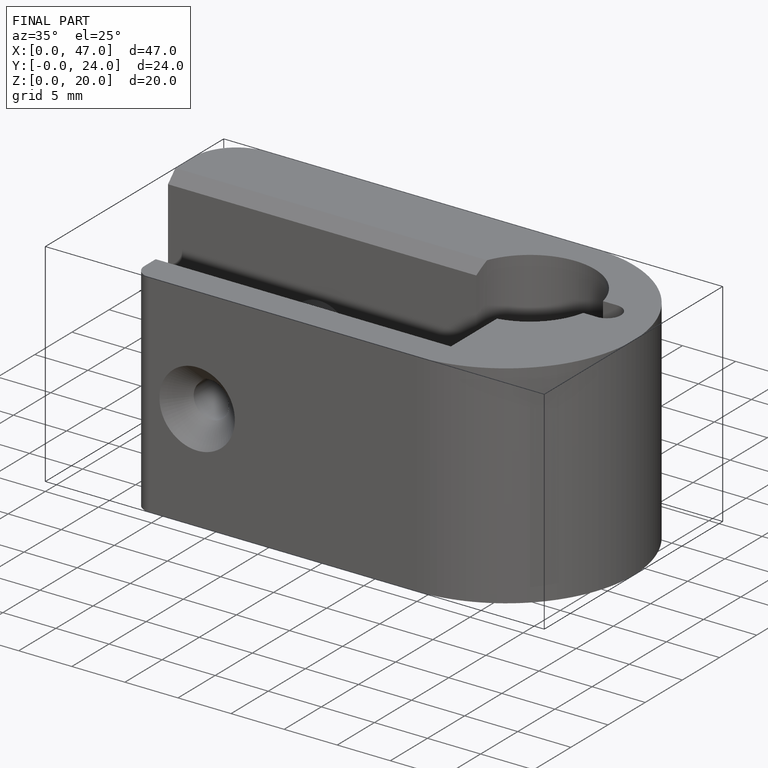
[diagram: finished part — iso view with bounding-box wireframe]
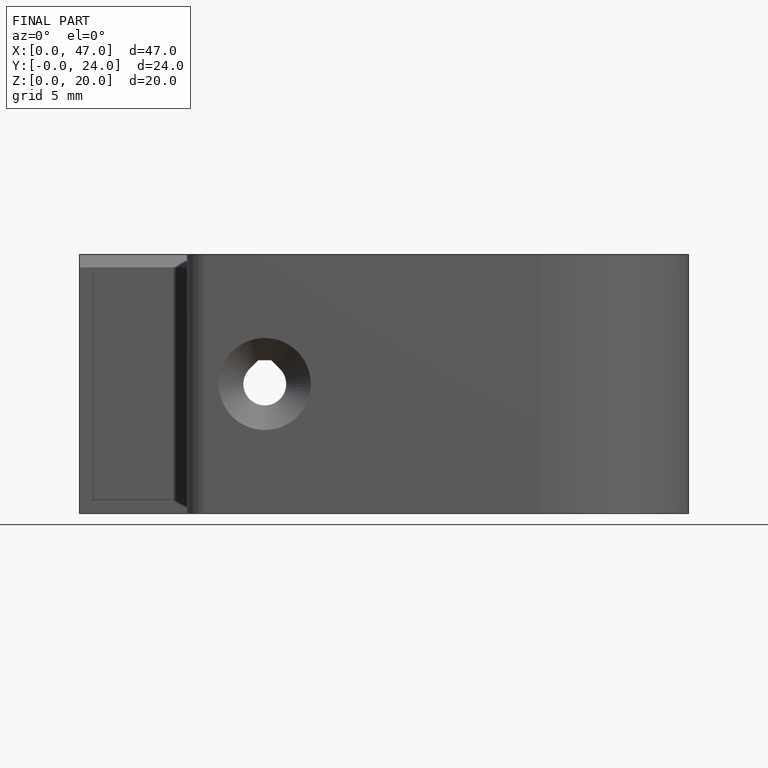
[diagram: finished part — front view with bounding-box wireframe]
